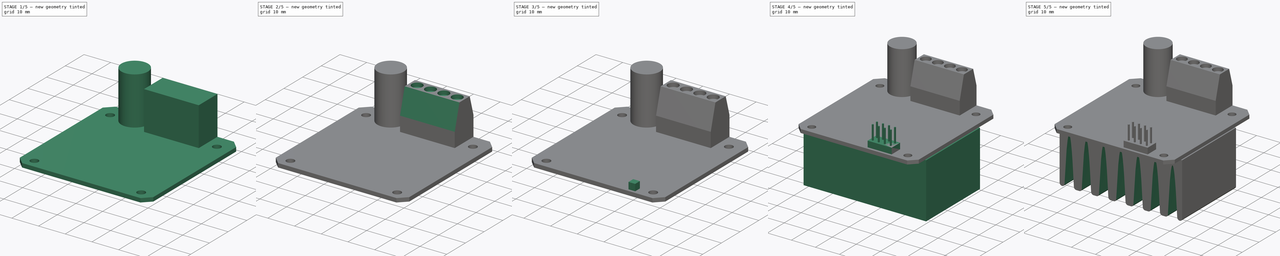
[diagram: build sequence overview — one tinted view per stage of 5, left to right]
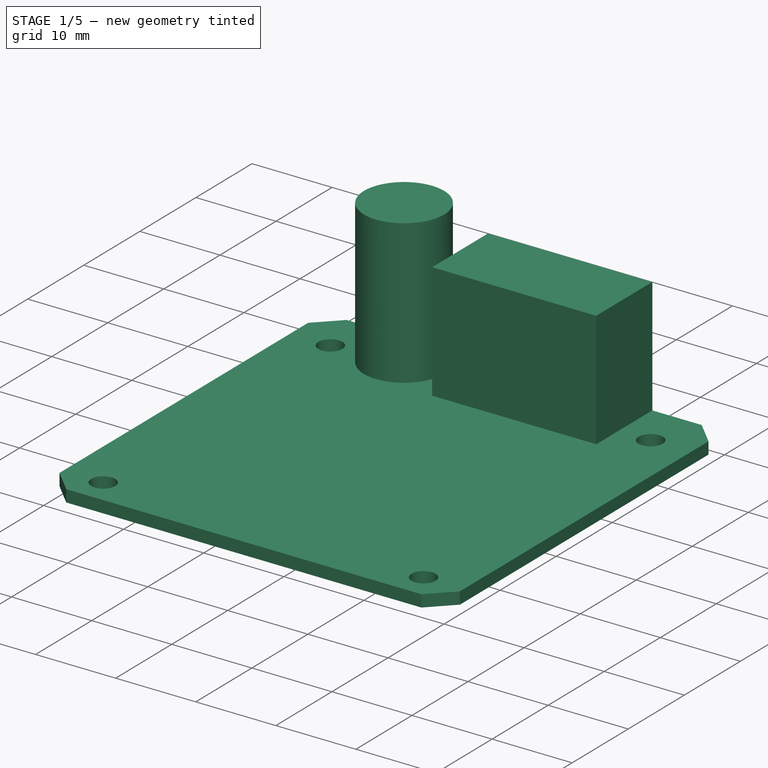
[diagram: stage 1 of 5 — iso view after this stage's code; geometry added in this stage tinted green]
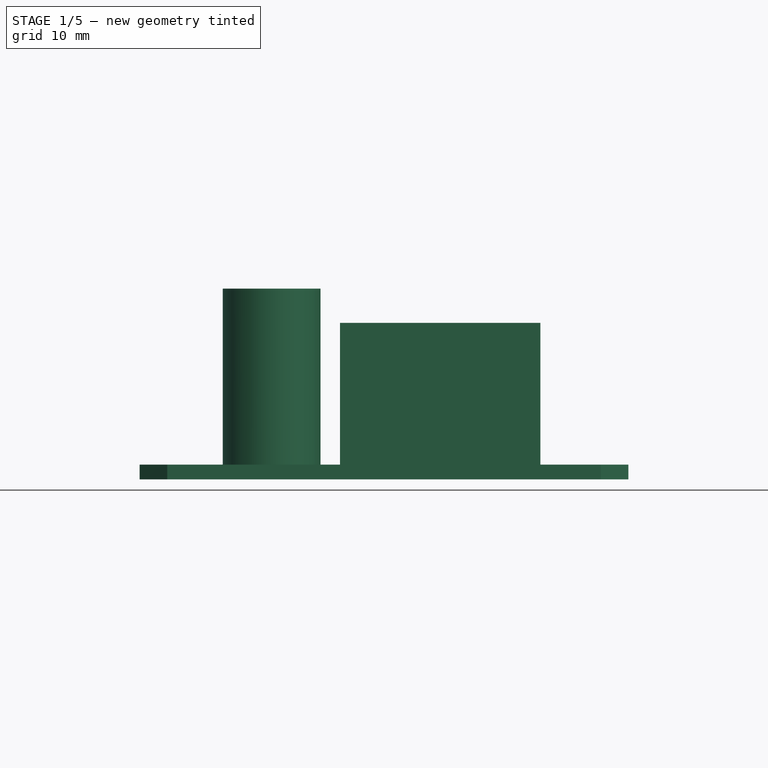
[diagram: stage 1 of 5 — front view after this stage's code; geometry added in this stage tinted green]
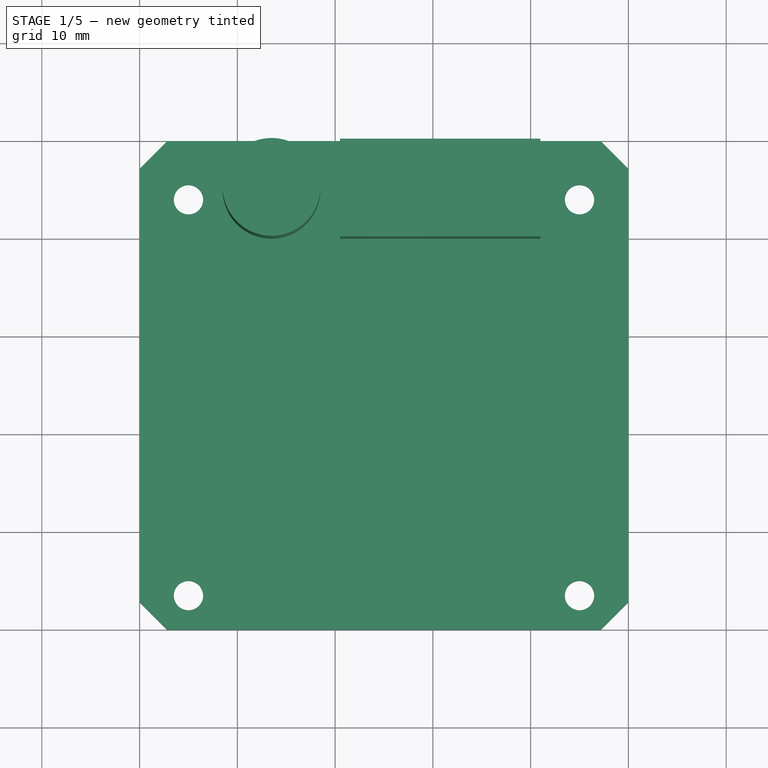
[diagram: stage 1 of 5 — top view after this stage's code; geometry added in this stage tinted green]
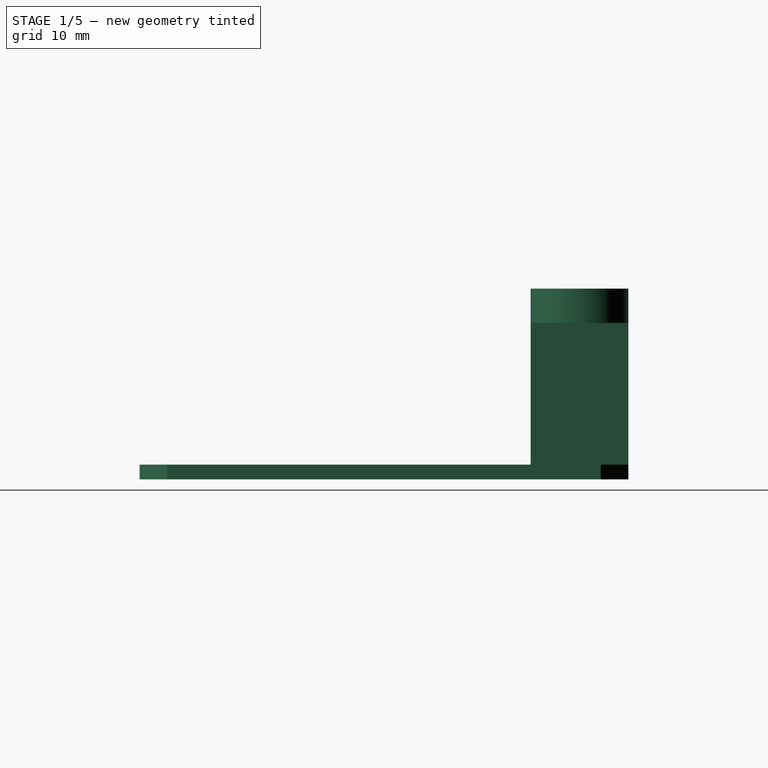
[diagram: stage 1 of 5 — right view after this stage's code; geometry added in this stage tinted green]
FCSTD DOCUMENT  (FreeCAD 1.0R39285 (Git))
Label: IBT_2-H-Bridge-MotorDriver
License: All rights reserved
LicenseURL: https://en.wikipedia.org/wiki/All_rights_reserved
objects: Sketcher::SketchObject×9, PartDesign::Pad×6, PartDesign::Chamfer×3, PartDesign::Pocket×3, PartDesign::LinearPattern×3, PartDesign::MultiTransform×1, PartDesign::Fillet×1, PartDesign::Body×1
note: 66 computed .brp shape members not serialized (recipe doc carries the construction recipe); baked Part::Feature solids carry a one-line shape summary decoded from their .brp

FEATURE [Sketcher::SketchObject] Sketch
  ArcFitTolerance = 1e-06
  AttachmentSupport = -> [XY_Plane]
  FullyConstrained = true
  MakeInternals = false
  MapMode = 5
  sketch-geometry (24):
    g0: LineSegment StartX=0 StartY=47.1716 StartZ=0 EndX=0 EndY=2.82843 EndZ=0
    g1: LineSegment StartX=2.82843 StartY=0 StartZ=0 EndX=47.1716 EndY=0 EndZ=0
    g2: LineSegment StartX=50 StartY=2.82843 StartZ=0 EndX=50 EndY=47.1716 EndZ=0
    g3: LineSegment StartX=47.1716 StartY=50 StartZ=0 EndX=2.82843 EndY=50 EndZ=0
    g4: LineSegment StartX=0 StartY=47.1716 StartZ=0 EndX=2.82843 EndY=50 EndZ=0
    g5: LineSegment StartX=47.1716 StartY=50 StartZ=0 EndX=50 EndY=47.1716 EndZ=0
    g6: LineSegment StartX=50 StartY=2.82843 StartZ=0 EndX=47.1716 EndY=0 EndZ=0
    g7: LineSegment StartX=2.82843 StartY=0 StartZ=0 EndX=0 EndY=2.82843 EndZ=0
    g8: LineSegment [constr] StartX=2.82843 StartY=50 StartZ=0 EndX=0 EndY=50 EndZ=0
    g9: LineSegment [constr] StartX=0 StartY=47.1716 StartZ=0 EndX=0 EndY=50 EndZ=0
    g10: LineSegment [constr] StartX=47.1716 StartY=50 StartZ=0 EndX=50 EndY=50 EndZ=0
    g11: LineSegment [constr] StartX=50 StartY=50 StartZ=0 EndX=50 EndY=47.1716 EndZ=0
    g12: LineSegment [constr] StartX=50 StartY=2.82843 StartZ=0 EndX=50 EndY=0 EndZ=0
    g13: LineSegment [constr] StartX=47.1716 StartY=0 StartZ=0 EndX=50 EndY=0 EndZ=0
    g14: LineSegment [constr] StartX=0 StartY=2.82843 StartZ=0 EndX=0 EndY=0 EndZ=0
    g15: LineSegment [constr] StartX=0 StartY=0 StartZ=0 EndX=2.82843 EndY=0 EndZ=0
    g16: Circle CenterX=5 CenterY=3.5 CenterZ=0 NormalX=0 NormalY=0 NormalZ=1 AngleXU=0 Radius=1.5
    g17: Circle CenterX=5 CenterY=44 CenterZ=0 NormalX=0 NormalY=0 NormalZ=1 AngleXU=0 Radius=1.5
    g18: Circle CenterX=45 CenterY=44 CenterZ=0 NormalX=0 NormalY=0 NormalZ=1 AngleXU=0 Radius=1.5
    g19: Circle CenterX=45 CenterY=3.5 CenterZ=0 NormalX=0 NormalY=0 NormalZ=1 AngleXU=0 Radius=1.5
    g20: LineSegment [constr] StartX=3.5 StartY=3.5 StartZ=0 EndX=0 EndY=3.5 EndZ=0
    g21: LineSegment [constr] StartX=46.5 StartY=3.5 StartZ=0 EndX=50 EndY=3.5 EndZ=0
    g22: LineSegment [constr] StartX=5 StartY=2 StartZ=0 EndX=5 EndY=0 EndZ=0
    g23: LineSegment [constr] StartX=5 StartY=45.5 StartZ=0 EndX=5 EndY=50 EndZ=0
  constraints (71):
    c: Vertical(g0)
    c: Vertical(g2)
    c: Horizontal(g1)
    c: Horizontal(g3)
    c: Coincident(g0,g7)
    c: Coincident(g1,g7)
    c: Coincident(g2,g6)
    c: Coincident(g1,g6)
    c: Coincident(g3,g5)
    c: Coincident(g2,g5)
    c: Coincident(g3,g4)
    c: Coincident(g0,g4)
    c: Coincident(g8,g3)
    c: Horizontal(g8)
    c: Coincident(g9,g0)
    c: Coincident(g9,g8)
    c: Coincident(g10,g3)
    c: Horizontal(g10)
    c: Coincident(g11,g10)
    c: Coincident(g11,g2)
    c: Coincident(g12,g2)
    c: Vertical(g12)
    c: Coincident(g13,g1)
    c: Coincident(g13,g12)
    c: Coincident(g14,g0)
    c: Vertical(g14)
    c: Coincident(g15,g14)
    c: Coincident(g15,g1)
    c: Horizontal(g15)
    c: Vertical(g9)
    c: Vertical(g11)
    c: Horizontal(g13)
    c: Equal(g13,g12)
    c: Equal(g12,g11)
    c: Equal(g11,g10)
    c: Equal(g10,g8)
    c: Equal(g8,g9)
    c: Equal(g9,g15)
    c: Equal(g15,g14)
    c: DistanceX(g14,g12) = 50
    c: DistanceY(g14,g8) = 50
    c: Coincident(g14,g-1)
    c: Distance(g5) = 4
    c: Equal(g18,g17)
    c: Equal(g17,g16)
    c: Equal(g16,g19)
    c: Horizontal(g16,g19)
    c: Horizontal(g17,g18)
    c: Vertical(g18,g19)
    c: Vertical(g16,g17)
    c: Diameter(g16) = 3
    c: PointOnObject(g20,g16)
    c: PointOnObject(g20,g0)
    c: Horizontal(g20)
    c: PointOnObject(g21,g19)
    c: PointOnObject(g21,g2)
    c: Horizontal(g21)
    c: DistanceX(g21,g21) = 3.5
    c: Equal(g21,g20)
    c: Horizontal(g20,g16)
    c: Horizontal(g16,g21)
    c: PointOnObject(g22,g16)
    c: PointOnObject(g22,g1)
    c: Vertical(g22)
    c: Vertical(g22,g16)
    c: DistanceY(g22,g22) = 2
    c: PointOnObject(g23,g17)
    c: PointOnObject(g23,g3)
    c: Vertical(g23)
    c: Vertical(g23,g17)
    c: DistanceY(g23,g23) = 4.5
FEATURE [PartDesign::Pad] Pad
  Direction = (0,0,1)
  Length = 1.5
  Length2 = 10
  Profile = -> Sketch
  ReferenceAxis = -> Sketch [N_Axis]
  Refine = true
  Reversed = true
  Suppressed = false
  Type = 0
FEATURE [Sketcher::SketchObject] Sketch001
  ArcFitTolerance = 1e-06
  AttachmentSupport = -> [Pad]
  ExternalGeometry = -> [Pad]
  FullyConstrained = true
  MakeInternals = false
  MapMode = 5
  sketch-geometry (3):
    g0: Circle CenterX=13.5 CenterY=45 CenterZ=0 NormalX=0 NormalY=0 NormalZ=1 AngleXU=0 Radius=5
    g1: GeomPoint [constr] X=13.5 Y=50 Z=0
    g2: LineSegment [constr] StartX=8.5 StartY=45 StartZ=0 EndX=0 EndY=45 EndZ=0
  constraints (9):
    c: Diameter(g0) = 10
    c: PointOnObject(g1,g0)
    c: Vertical(g1,g0)
    c: PointOnObject(g1,g-3)
    c: PointOnObject(g2,g0)
    c: PointOnObject(g2,g-2)
    c: Horizontal(g2)
    c: Horizontal(g2,g0)
    c: DistanceX(g2,g2) = 8.5
FEATURE [PartDesign::Pad] Pad001
  BaseFeature = -> Pad
  Direction = (0,0,1)
  Length = 18
  Length2 = 10
  Profile = -> Sketch001
  ReferenceAxis = -> Sketch001 [N_Axis]
  Refine = true
  Suppressed = false
  Type = 0
FEATURE [Sketcher::SketchObject] Sketch002
  ArcFitTolerance = 1e-06
  AttachmentSupport = -> [Pad001]
  ExternalGeometry = -> [Pad001]
  FullyConstrained = true
  MakeInternals = false
  MapMode = 5
  sketch-geometry (4):
    g0: LineSegment StartX=20.5 StartY=50 StartZ=0 EndX=20.5 EndY=40 EndZ=0
    g1: LineSegment StartX=20.5 StartY=40 StartZ=0 EndX=41 EndY=40 EndZ=0
    g2: LineSegment StartX=41 StartY=40 StartZ=0 EndX=41 EndY=50 EndZ=0
    g3: LineSegment StartX=41 StartY=50 StartZ=0 EndX=20.5 EndY=50 EndZ=0
  constraints (12):
    c: Coincident(g0,g1)
    c: Coincident(g1,g2)
    c: Coincident(g2,g3)
    c: Coincident(g3,g0)
    c: Vertical(g0)
    c: Vertical(g2)
    c: Horizontal(g1)
    c: Horizontal(g3)
    c: Distance(g0,g2) = 20.5
    c: Distance(g1,g3) = 10
    c: PointOnObject(g0,g-3)
    c: DistanceX(g1,g-4) = 9
FEATURE [PartDesign::Pad] Pad002
  BaseFeature = -> Pad001
  Direction = (0,0,1)
  Length = 14.5
  Length2 = 10
  Profile = -> Sketch002
  ReferenceAxis = -> Sketch002 [N_Axis]
  Refine = true
  Suppressed = false
  Type = 0
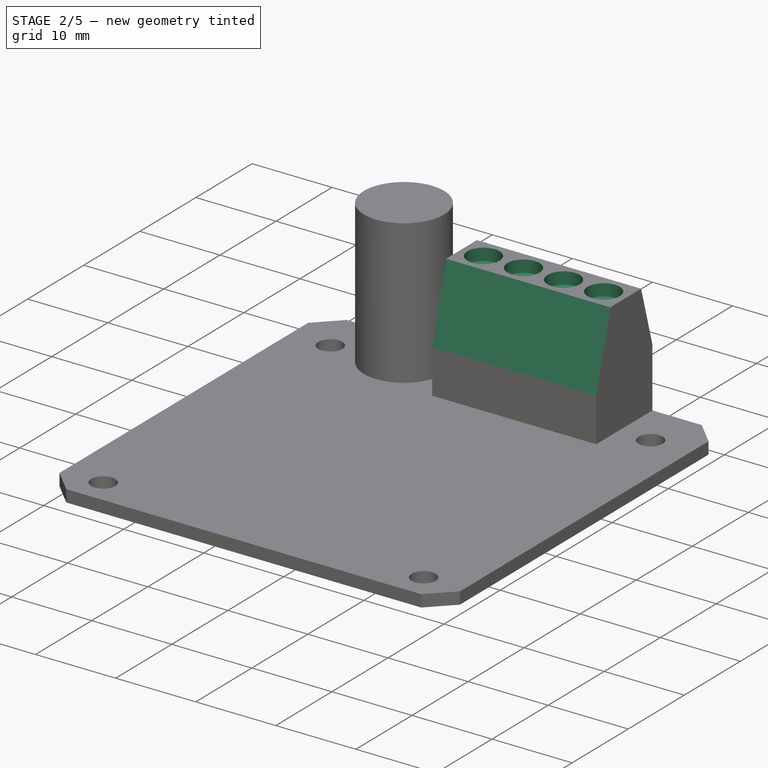
[diagram: stage 2 of 5 — iso view after this stage's code; geometry added in this stage tinted green]
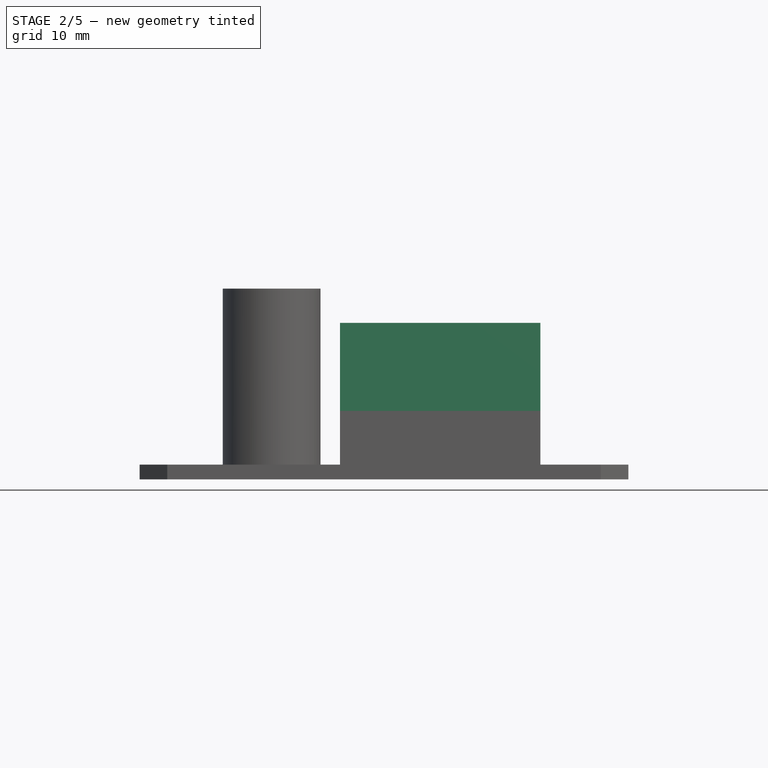
[diagram: stage 2 of 5 — front view after this stage's code; geometry added in this stage tinted green]
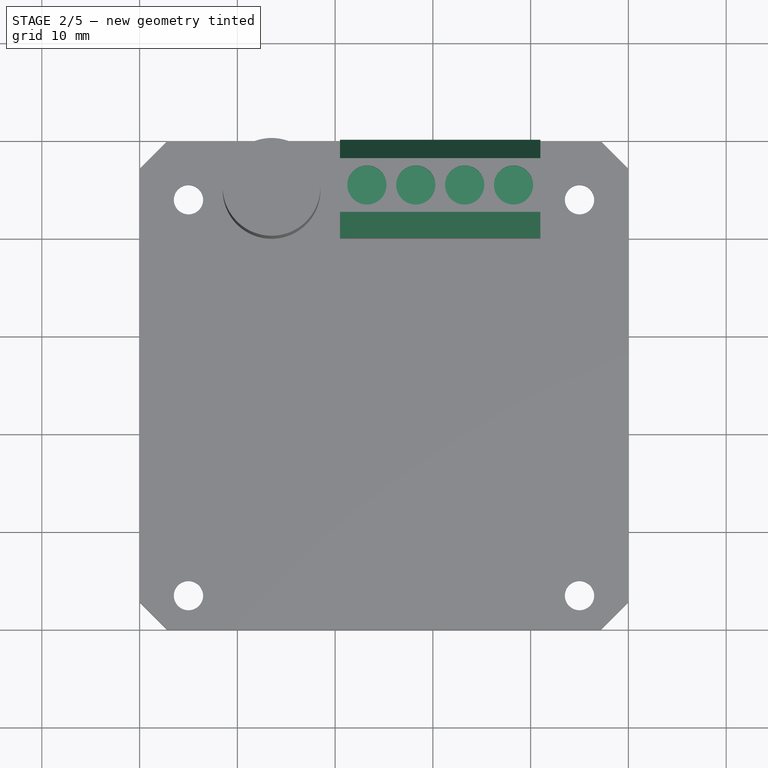
[diagram: stage 2 of 5 — top view after this stage's code; geometry added in this stage tinted green]
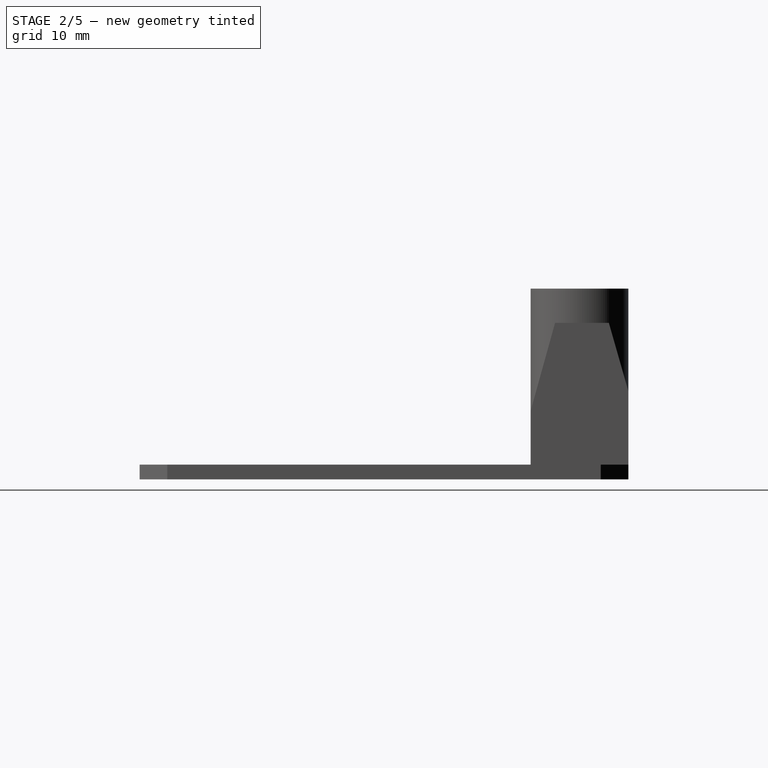
[diagram: stage 2 of 5 — right view after this stage's code; geometry added in this stage tinted green]
FEATURE [PartDesign::Chamfer] Chamfer
  Angle = 45
  Base = -> Pad002 [Edge44]
  BaseFeature = -> Pad002
  ChamferType = 1
  FlipDirection = false
  Refine = true
  Size = 9
  Size2 = 2.5
  SupportTransform = false
  Suppressed = false
  UseAllEdges = false
FEATURE [PartDesign::Chamfer] Chamfer001
  Angle = 45
  Base = -> Chamfer [Edge28]
  BaseFeature = -> Chamfer
  ChamferType = 1
  FlipDirection = false
  Refine = true
  Size = 2
  Size2 = 7
  SupportTransform = false
  Suppressed = false
  UseAllEdges = false
FEATURE [Sketcher::SketchObject] Sketch003
  ArcFitTolerance = 1e-06
  AttachmentSupport = -> [Chamfer001]
  ExternalGeometry = -> [Chamfer001]
  FullyConstrained = true
  MakeInternals = false
  MapMode = 5
  Placement = pos=(0,0,14.5) rot=(0,0,1;0rad)
  sketch-geometry (10):
    g0: Circle CenterX=23.25 CenterY=45.25 CenterZ=0 NormalX=0 NormalY=0 NormalZ=1 AngleXU=0 Radius=2
    g1: Circle CenterX=28.25 CenterY=45.25 CenterZ=0 NormalX=0 NormalY=0 NormalZ=1 AngleXU=0 Radius=2
    g2: Circle CenterX=33.25 CenterY=45.25 CenterZ=0 NormalX=0 NormalY=0 NormalZ=1 AngleXU=0 Radius=2
    g3: Circle CenterX=38.25 CenterY=45.25 CenterZ=0 NormalX=0 NormalY=0 NormalZ=1 AngleXU=0 Radius=2
    g4: GeomPoint [constr] X=20.5 Y=45.25 Z=0
    g5: LineSegment [constr] StartX=38.25 StartY=45.25 StartZ=0 EndX=41 EndY=45.25 EndZ=0
    g6: LineSegment [constr] StartX=38.25 StartY=45.25 StartZ=0 EndX=33.25 EndY=45.25 EndZ=0
    g7: LineSegment [constr] StartX=33.25 StartY=45.25 StartZ=0 EndX=28.25 EndY=45.25 EndZ=0
    g8: LineSegment [constr] StartX=28.25 StartY=45.25 StartZ=0 EndX=23.25 EndY=45.25 EndZ=0
    g9: LineSegment [constr] StartX=23.25 StartY=45.25 StartZ=0 EndX=20.5 EndY=45.25 EndZ=0
  constraints (24):
    c: Equal(g2,g3)
    c: Equal(g3,g1)
    c: Equal(g1,g0)
    c: Horizontal(g0,g1)
    c: Horizontal(g1,g2)
    c: Horizontal(g2,g3)
    c: Diameter(g3) = 4
    c: Symmetric(g-3,g-4,g4)
    c: Horizontal(g4,g0)
    c: Coincident(g5,g3)
    c: Horizontal(g5)
    c: Coincident(g6,g3)
    c: Coincident(g6,g2)
    c: Coincident(g7,g2)
    c: Coincident(g7,g1)
    c: Coincident(g8,g1)
    c: Coincident(g8,g0)
    c: Coincident(g9,g0)
    c: Coincident(g9,g4)
    c: Equal(g9,g5)
    c: Vertical(g5,g-3)
    c: Equal(g6,g7)
    c: Equal(g7,g8)
    c: DistanceX(g6,g6) = 5
FEATURE [PartDesign::Pocket] Pocket
  BaseFeature = -> Chamfer001
  Direction = (0,0,-1)
  Length = 1.5
  Length2 = 5
  Profile = -> Sketch003
  ReferenceAxis = -> Sketch003 [N_Axis]
  Refine = true
  Suppressed = false
  Type = 0
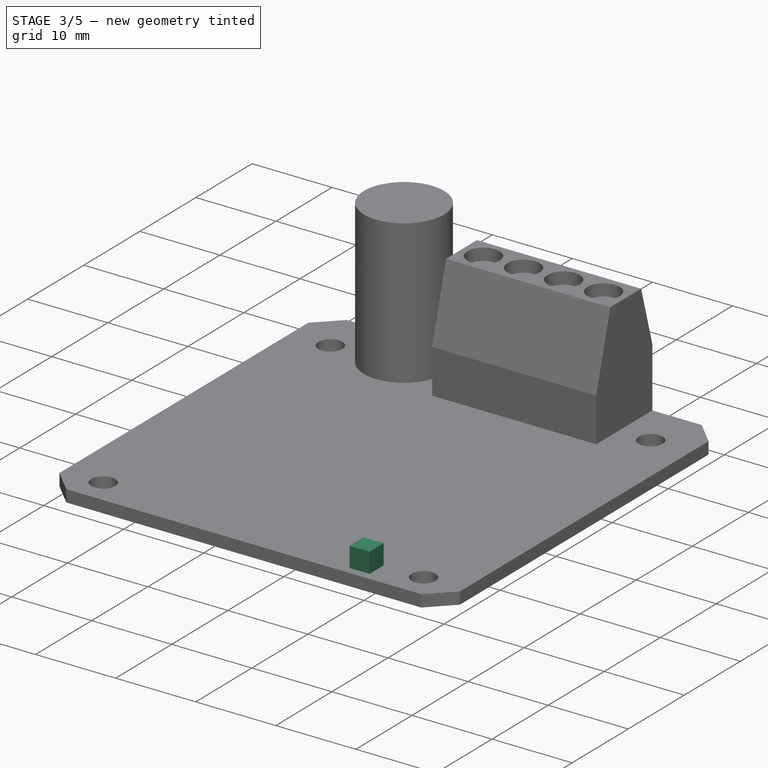
[diagram: stage 3 of 5 — iso view after this stage's code; geometry added in this stage tinted green]
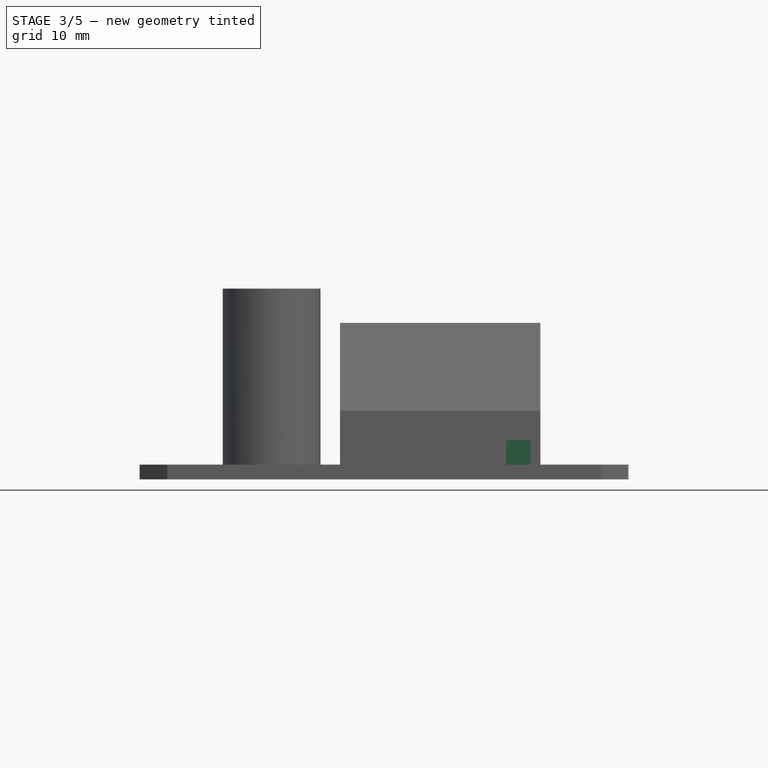
[diagram: stage 3 of 5 — front view after this stage's code; geometry added in this stage tinted green]
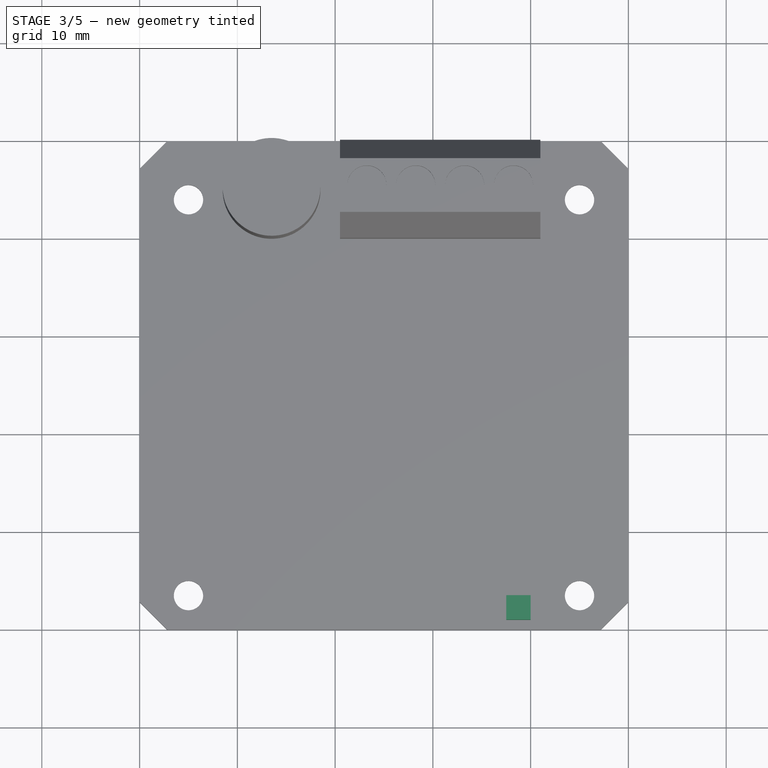
[diagram: stage 3 of 5 — top view after this stage's code; geometry added in this stage tinted green]
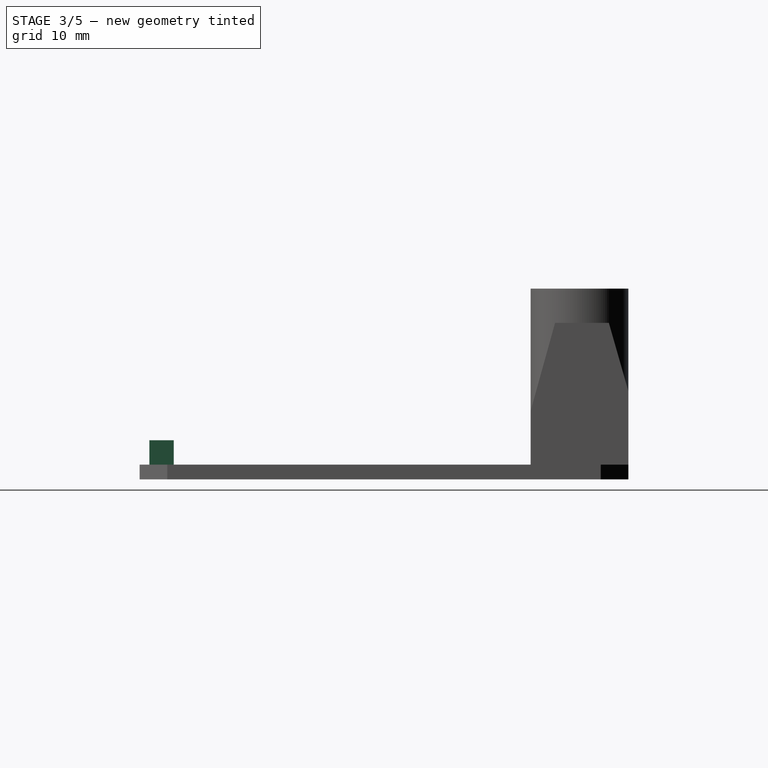
[diagram: stage 3 of 5 — right view after this stage's code; geometry added in this stage tinted green]
FEATURE [Sketcher::SketchObject] Sketch004
  ArcFitTolerance = 1e-06
  AttachmentSupport = -> [Pocket]
  ExternalGeometry = -> [Pocket]
  FullyConstrained = true
  MakeInternals = false
  MapMode = 5
  Placement = pos=(0,50,0) rot=(0,0.707107,0.707107;3.14159rad)
  sketch-geometry (21):
    g0: LineSegment StartX=-39.75 StartY=5.5 StartZ=0 EndX=-39.75 EndY=2.5 EndZ=0
    g1: LineSegment StartX=-39.75 StartY=2.5 StartZ=0 EndX=-36.75 EndY=2.5 EndZ=0
    g2: LineSegment StartX=-36.75 StartY=2.5 StartZ=0 EndX=-36.75 EndY=5.5 EndZ=0
    g3: LineSegment StartX=-36.75 StartY=5.5 StartZ=0 EndX=-39.75 EndY=5.5 EndZ=0
    g4: LineSegment StartX=-34.75 StartY=5.5 StartZ=0 EndX=-34.75 EndY=2.5 EndZ=0
    g5: LineSegment StartX=-34.75 StartY=2.5 StartZ=0 EndX=-31.75 EndY=2.5 EndZ=0
    g6: LineSegment StartX=-31.75 StartY=2.5 StartZ=0 EndX=-31.75 EndY=5.5 EndZ=0
    g7: LineSegment StartX=-31.75 StartY=5.5 StartZ=0 EndX=-34.75 EndY=5.5 EndZ=0
    g8: LineSegment StartX=-29.75 StartY=5.5 StartZ=0 EndX=-29.75 EndY=2.5 EndZ=0
    g9: LineSegment StartX=-29.75 StartY=2.5 StartZ=0 EndX=-26.75 EndY=2.5 EndZ=0
    g10: LineSegment StartX=-26.75 StartY=2.5 StartZ=0 EndX=-26.75 EndY=5.5 EndZ=0
    g11: LineSegment StartX=-26.75 StartY=5.5 StartZ=0 EndX=-29.75 EndY=5.5 EndZ=0
    g12: LineSegment StartX=-24.75 StartY=5.5 StartZ=0 EndX=-24.75 EndY=2.5 EndZ=0
    g13: LineSegment StartX=-24.75 StartY=2.5 StartZ=0 EndX=-21.75 EndY=2.5 EndZ=0
    g14: LineSegment StartX=-21.75 StartY=2.5 StartZ=0 EndX=-21.75 EndY=5.5 EndZ=0
    g15: LineSegment StartX=-21.75 StartY=5.5 StartZ=0 EndX=-24.75 EndY=5.5 EndZ=0
    g16: LineSegment [constr] StartX=-39.75 StartY=5.5 StartZ=0 EndX=-41 EndY=5.5 EndZ=0
    g17: LineSegment [constr] StartX=-36.75 StartY=5.5 StartZ=0 EndX=-34.75 EndY=5.5 EndZ=0
    g18: LineSegment [constr] StartX=-31.75 StartY=5.5 StartZ=0 EndX=-29.75 EndY=5.5 EndZ=0
    g19: LineSegment [constr] StartX=-26.75 StartY=5.5 StartZ=0 EndX=-24.75 EndY=5.5 EndZ=0
    g20: LineSegment [constr] StartX=-21.75 StartY=5.5 StartZ=0 EndX=-20.5 EndY=5.5 EndZ=0
  constraints (60):
    c: Coincident(g0,g1)
    c: Coincident(g1,g2)
    c: Coincident(g2,g3)
    c: Coincident(g3,g0)
    c: Vertical(g0)
    c: Vertical(g2)
    c: Horizontal(g1)
    c: Horizontal(g3)
    c: Coincident(g4,g5)
    c: Coincident(g5,g6)
    c: Coincident(g6,g7)
    c: Coincident(g7,g4)
    c: Vertical(g4)
    c: Vertical(g6)
    c: Horizontal(g5)
    c: Horizontal(g7)
    c: Coincident(g8,g9)
    c: Coincident(g9,g10)
    c: Coincident(g10,g11)
    c: Coincident(g11,g8)
    c: Vertical(g8)
    c: Vertical(g10)
    c: Horizontal(g9)
    c: Horizontal(g11)
    c: Coincident(g12,g13)
    c: Coincident(g13,g14)
    c: Coincident(g14,g15)
    c: Coincident(g15,g12)
    c: Vertical(g12)
    c: Vertical(g14)
    c: Horizontal(g13)
    c: Horizontal(g15)
    c: Equal(g3,g7)
    c: Equal(g7,g11)
    c: Equal(g11,g15)
    c: DistanceX(g11,g11) = 3
    c: Equal(g2,g6)
    c: Equal(g6,g10)
    c: Equal(g10,g14)
    c: DistanceY(g10,g10) = 3
    c: Horizontal(g1,g4)
    c: Horizontal(g4,g8)
    c: Horizontal(g8,g12)
    c: Coincident(g16,g0)
    c: Horizontal(g16)
    c: Coincident(g17,g2)
    c: Coincident(g17,g4)
    c: Coincident(g18,g6)
    c: Coincident(g18,g8)
    c: Coincident(g19,g10)
    c: Coincident(g19,g12)
    c: Coincident(g20,g14)
    c: Horizontal(g20)
    c: Vertical(g20,g-3)
    c: Vertical(g-3,g16)
    c: Equal(g20,g16)
    c: Equal(g17,g18)
    c: Equal(g18,g19)
    c: DistanceY(g-1,g13) = 2.5
    c: DistanceX(g0,g4) = 5
FEATURE [PartDesign::Pocket] Pocket001
  BaseFeature = -> Pocket
  Direction = (0,-1,2e-16)
  Length = 5
  Length2 = 5
  Profile = -> Sketch004
  ReferenceAxis = -> Sketch004 [N_Axis]
  Refine = true
  Suppressed = false
  Type = 0
FEATURE [PartDesign::Chamfer] Chamfer002
  Angle = 45
  Base = -> Pocket001 [Edge40,Edge36,Edge32,Edge28]
  BaseFeature = -> Pocket001
  ChamferType = 0
  FlipDirection = false
  Refine = true
  Size = 1
  Size2 = 1
  SupportTransform = false
  Suppressed = false
  UseAllEdges = false
FEATURE [Sketcher::SketchObject] Sketch005
  ArcFitTolerance = 1e-06
  AttachmentSupport = -> [Chamfer002]
  ExternalGeometry = -> [Chamfer002]
  FullyConstrained = true
  MakeInternals = false
  MapMode = 5
  sketch-geometry (4):
    g0: LineSegment StartX=37.5 StartY=3.5 StartZ=0 EndX=37.5 EndY=1 EndZ=0
    g1: LineSegment StartX=37.5 StartY=1 StartZ=0 EndX=40 EndY=1 EndZ=0
    g2: LineSegment StartX=40 StartY=1 StartZ=0 EndX=40 EndY=3.5 EndZ=0
    g3: LineSegment StartX=40 StartY=3.5 StartZ=0 EndX=37.5 EndY=3.5 EndZ=0
  constraints (12):
    c: Coincident(g0,g1)
    c: Coincident(g1,g2)
    c: Coincident(g2,g3)
    c: Coincident(g3,g0)
    c: Vertical(g0)
    c: Vertical(g2)
    c: Horizontal(g1)
    c: Horizontal(g3)
    c: Distance(g0,g2) = 2.5
    c: Distance(g1,g3) = 2.5
    c: DistanceX(g1,g-3) = 10
    c: DistanceY(g-1,g1) = 1
FEATURE [PartDesign::Pad] Pad003
  BaseFeature = -> Chamfer002
  Direction = (0,0,1)
  Length = 2.5
  Length2 = 10
  Profile = -> Sketch005
  ReferenceAxis = -> Sketch005 [N_Axis]
  Refine = true
  Suppressed = false
  Type = 0
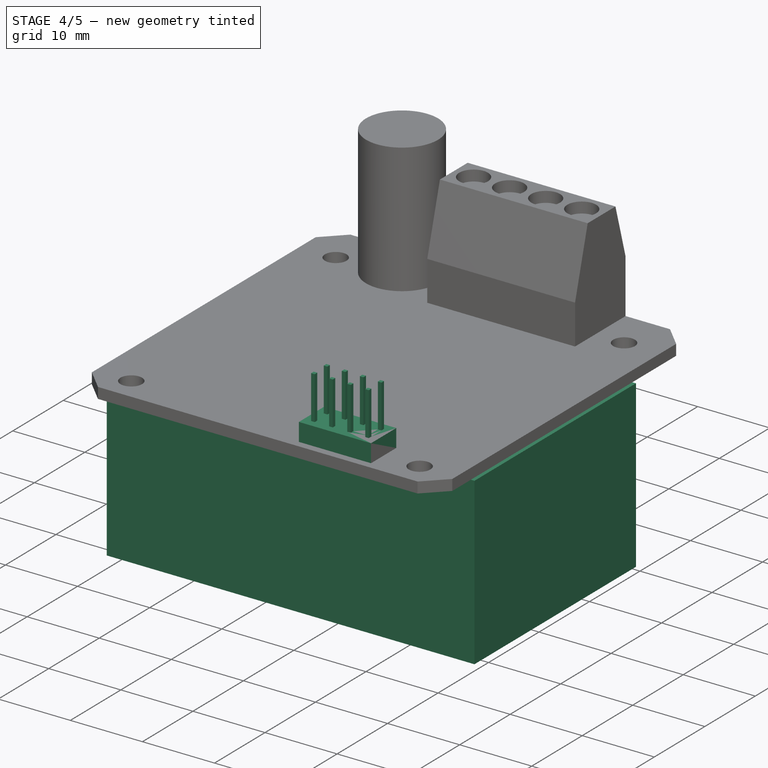
[diagram: stage 4 of 5 — iso view after this stage's code; geometry added in this stage tinted green]
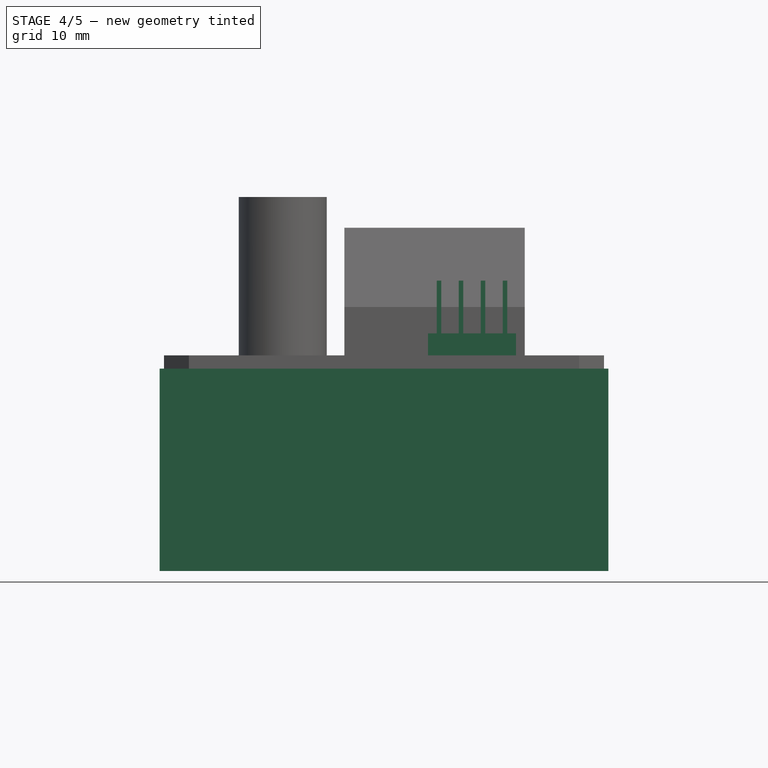
[diagram: stage 4 of 5 — front view after this stage's code; geometry added in this stage tinted green]
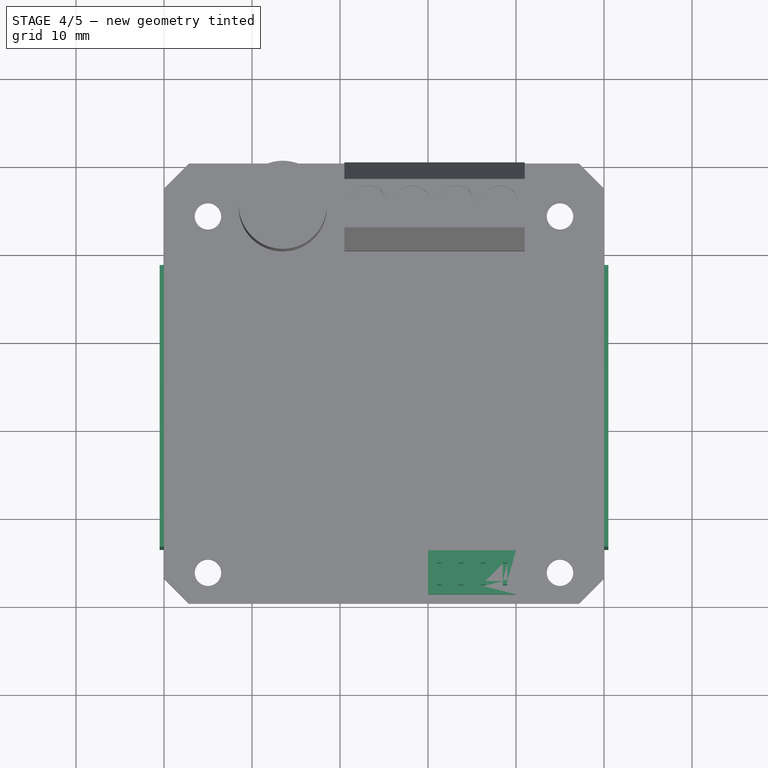
[diagram: stage 4 of 5 — top view after this stage's code; geometry added in this stage tinted green]
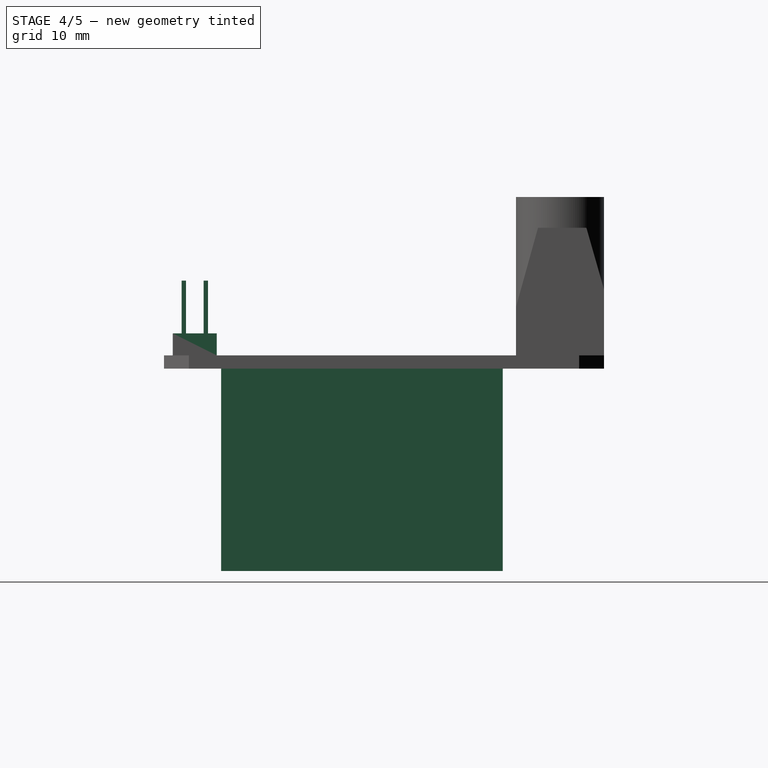
[diagram: stage 4 of 5 — right view after this stage's code; geometry added in this stage tinted green]
FEATURE [Sketcher::SketchObject] Sketch006
  ArcFitTolerance = 1e-06
  AttachmentSupport = -> [Pad003]
  ExternalGeometry = -> [Pad003]
  FullyConstrained = true
  MakeInternals = false
  MapMode = 5
  Placement = pos=(0,0,2.5) rot=(0,0,1;0rad)
  sketch-geometry (5):
    g0: LineSegment StartX=38.5 StartY=2.5 StartZ=0 EndX=38.5 EndY=2 EndZ=0
    g1: LineSegment StartX=38.5 StartY=2 StartZ=0 EndX=39 EndY=2 EndZ=0
    g2: LineSegment StartX=39 StartY=2 StartZ=0 EndX=39 EndY=2.5 EndZ=0
    g3: LineSegment StartX=39 StartY=2.5 StartZ=0 EndX=38.5 EndY=2.5 EndZ=0
    g4: GeomPoint [constr] X=38.75 Y=2.25 Z=0
  constraints (12):
    c: Coincident(g0,g1)
    c: Coincident(g1,g2)
    c: Coincident(g2,g3)
    c: Coincident(g3,g0)
    c: Vertical(g0)
    c: Vertical(g2)
    c: Horizontal(g1)
    c: Horizontal(g3)
    c: Equal(g0,g3)
    c: Symmetric(g0,g1,g4)
    c: Symmetric(g-3,g-4,g4)
    c: DistanceY(g2,g2) = 0.5
FEATURE [PartDesign::Pad] Pad004
  BaseFeature = -> Pad003
  Direction = (0,0,1)
  Length = 6
  Length2 = 10
  Profile = -> Sketch006
  ReferenceAxis = -> Sketch006 [N_Axis]
  Refine = true
  Suppressed = false
  Type = 0
FEATURE [PartDesign::LinearPattern] LinearPattern
  Direction = -> Sketch006 [H_Axis]
  Length = 7.5
  Mode = 0
  Occurrences = 4
  Offset = 2.5
  Refine = true
  Reversed = true
  Suppressed = false
  TransformMode = 0
FEATURE [PartDesign::LinearPattern] LinearPattern001
  Direction = -> Sketch006 [V_Axis]
  Length = 2.5
  Mode = 0
  Occurrences = 2
  Offset = 2.5
  Refine = true
  Suppressed = false
  TransformMode = 0
FEATURE [PartDesign::MultiTransform] MultiTransform
  BaseFeature = -> Pad004
  Originals = -> [Pad004,Pad003]
  Refine = true
  Suppressed = false
  TransformMode = 0
  Transformations = -> [LinearPattern,LinearPattern001]
FEATURE [Sketcher::SketchObject] Sketch007
  ArcFitTolerance = 1e-06
  AttachmentSupport = -> [MultiTransform]
  ExternalGeometry = -> [MultiTransform]
  FullyConstrained = true
  MakeInternals = false
  MapMode = 5
  Placement = pos=(0,0,-1.5) rot=(1,0,0;3.14159rad)
  sketch-geometry (9):
    g0: LineSegment StartX=-0.5 StartY=-6.5 StartZ=0 EndX=-0.5 EndY=-38.5 EndZ=0
    g1: LineSegment StartX=-0.5 StartY=-38.5 StartZ=0 EndX=50.5 EndY=-38.5 EndZ=0
    g2: LineSegment StartX=50.5 StartY=-38.5 StartZ=0 EndX=50.5 EndY=-6.5 EndZ=0
    g3: LineSegment StartX=50.5 StartY=-6.5 StartZ=0 EndX=-0.5 EndY=-6.5 EndZ=0
    g4: GeomPoint [constr] X=1.41421 Y=-1.41421 Z=0
    g5: GeomPoint [constr] X=48.5858 Y=-48.5858 Z=0
    g6: GeomPoint X=25 Y=-6.5 Z=0
    g7: GeomPoint X=50 Y=-6.5 Z=0
    g8: GeomPoint X=0 Y=-6.5 Z=0
  constraints (18):
    c: Coincident(g0,g1)
    c: Coincident(g1,g2)
    c: Coincident(g2,g3)
    c: Coincident(g3,g0)
    c: Vertical(g0)
    c: Vertical(g2)
    c: Horizontal(g1)
    c: Horizontal(g3)
    c: Distance(g0,g2) = 51
    c: Distance(g1,g3) = 32
    c: Symmetric(g-4,g-4,g4)
    c: Symmetric(g-3,g-3,g5)
    c: DistanceY(g2,g-1) = 6.5
    c: Symmetric(g3,g3,g6)
    c: PointOnObject(g7,g-5)
    c: Horizontal(g7,g6)
    c: PointOnObject(g8,g-2)
    c: Symmetric(g8,g7,g6)
FEATURE [PartDesign::Pad] Pad005
  BaseFeature = -> MultiTransform
  Direction = (0,0,-1)
  Length = 23
  Length2 = 10
  Profile = -> Sketch007
  ReferenceAxis = -> Sketch007 [N_Axis]
  Refine = true
  Suppressed = false
  Type = 0
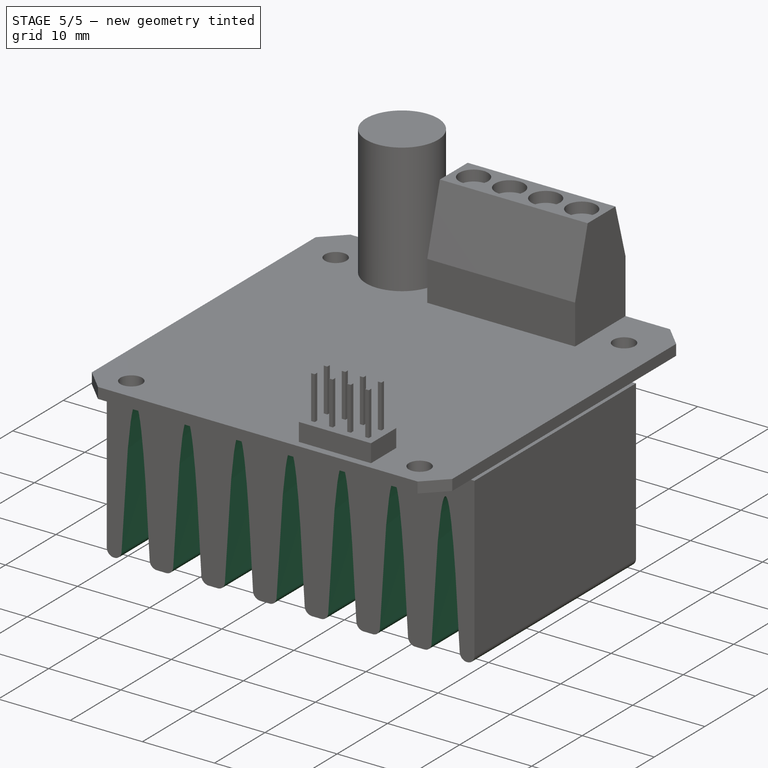
[diagram: stage 5 of 5 — iso view after this stage's code; geometry added in this stage tinted green]
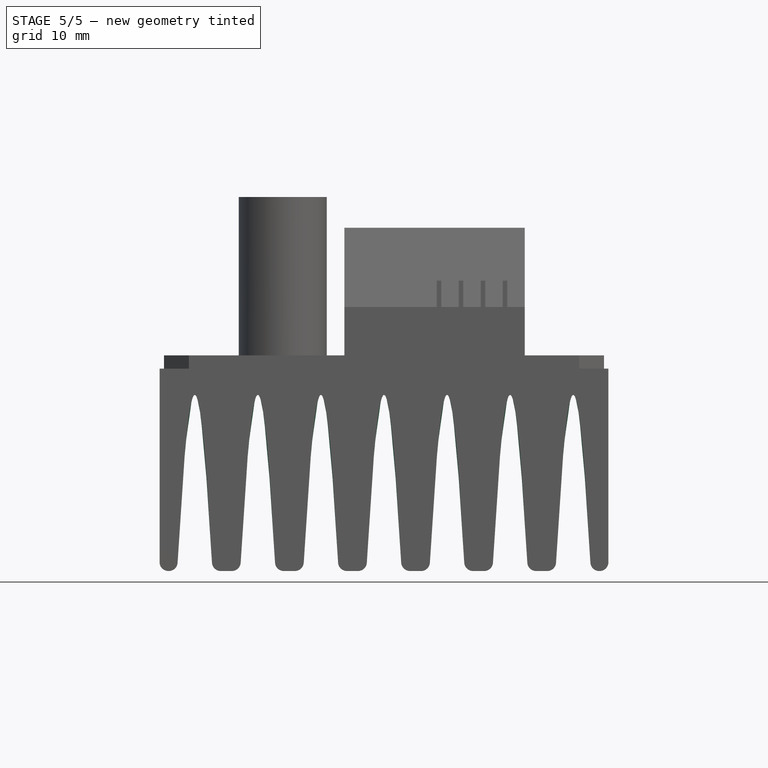
[diagram: stage 5 of 5 — front view after this stage's code; geometry added in this stage tinted green]
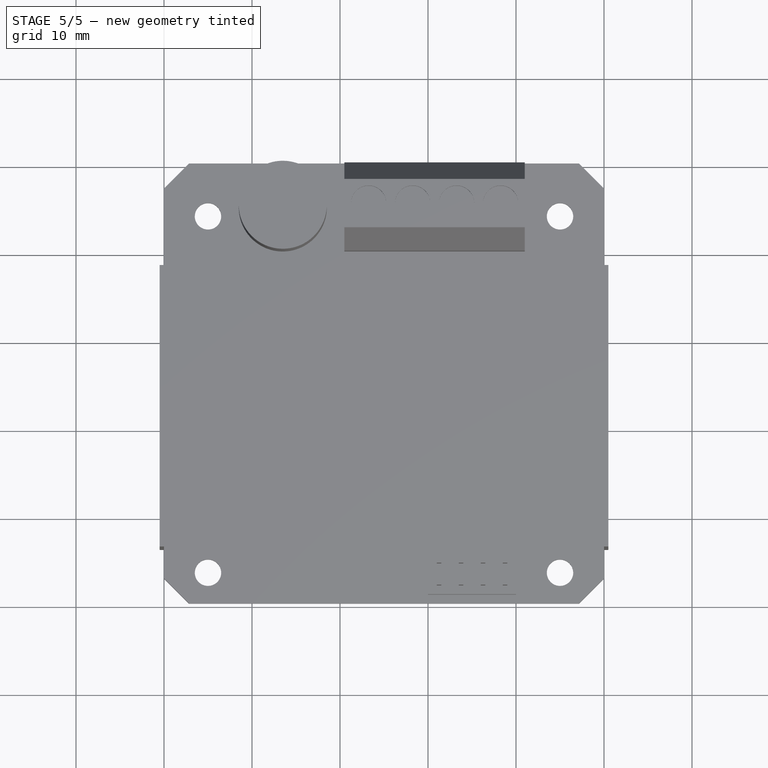
[diagram: stage 5 of 5 — top view after this stage's code; geometry added in this stage tinted green]
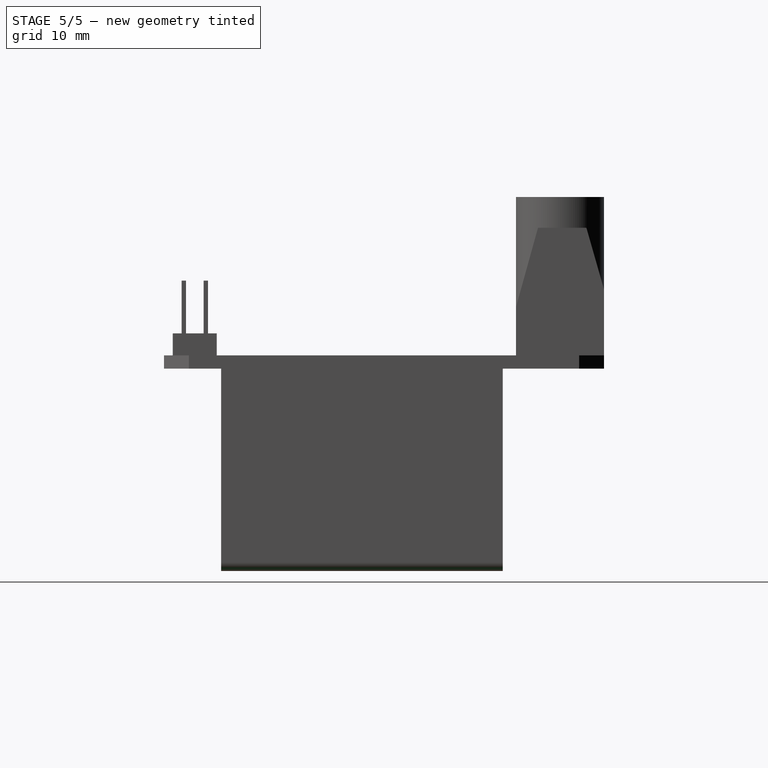
[diagram: stage 5 of 5 — right view after this stage's code; geometry added in this stage tinted green]
FEATURE [Sketcher::SketchObject] Sketch008
  ArcFitTolerance = 1e-06
  AttachmentSupport = -> [Pad005]
  ExternalGeometry = -> [Pad005]
  FullyConstrained = true
  MakeInternals = false
  MapMode = 5
  Placement = pos=(0,6.5,0) rot=(1,0,0;1.5708rad)
  sketch-geometry (11):
    g0: Circle [constr] CenterX=1.5 CenterY=-24.5 CenterZ=0 NormalX=0 NormalY=0 NormalZ=1 AngleXU=0 Radius=1
    g1: Circle [constr] CenterX=3.5 CenterY=15.5 CenterZ=0 NormalX=0 NormalY=0 NormalZ=1 AngleXU=0 Radius=1
    g2: Circle [constr] CenterX=5.5 CenterY=-24.5 CenterZ=0 NormalX=0 NormalY=0 NormalZ=1 AngleXU=0 Radius=1
    g3: BSplineCurve PolesCount=3 KnotsCount=2 Degree=2 IsPeriodic=0
    g4: GeomPoint [constr] X=1.5 Y=-24.5 Z=0
    g5: GeomPoint [constr] X=5.5 Y=-24.5 Z=0
    g6: LineSegment [constr] StartX=1.5 StartY=-24.5 StartZ=0 EndX=1.5 EndY=15.5 EndZ=0
    g7: LineSegment [constr] StartX=5.5 StartY=-24.5 StartZ=0 EndX=5.5 EndY=15.5 EndZ=0
    g8: LineSegment [constr] StartX=1.5 StartY=15.5 StartZ=0 EndX=3.5 EndY=15.5 EndZ=0
    g9: LineSegment [constr] StartX=3.5 StartY=15.5 StartZ=0 EndX=5.5 EndY=15.5 EndZ=0
    g10: LineSegment StartX=1.5 StartY=-24.5 StartZ=0 EndX=5.5 EndY=-24.5 EndZ=0
  constraints (25):
    c: Weight(g0) = 1
    c: Equal(g0,g1)
    c: Equal(g0,g2)
    c: InternalAlignment(g0,g3)
    c: InternalAlignment(g1,g3)
    c: InternalAlignment(g2,g3)
    c: InternalAlignment(g4,g3)
    c: InternalAlignment(g5,g3)
    c: DistanceX(g3,g3) = 4
    c: Coincident(g6,g3)
    c: Vertical(g6)
    c: Coincident(g7,g3)
    c: Coincident(g8,g6)
    c: Coincident(g8,g1)
    c: Horizontal(g8)
    c: Coincident(g9,g1)
    c: Coincident(g9,g7)
    c: Vertical(g7)
    c: Symmetric(g7,g6,g1)
    c: DistanceY(g7,g7) = 40
    c: Horizontal(g3,g3)
    c: PointOnObject(g3,g-3)
    c: Coincident(g10,g3)
    c: Coincident(g10,g3)
    c: DistanceX(g-3,g3) = 2
FEATURE [PartDesign::Pocket] Pocket002
  BaseFeature = -> Pad005
  Direction = (0,1,-2e-16)
  Length = 5
  Length2 = 5
  Profile = -> Sketch008
  ReferenceAxis = -> Sketch008 [N_Axis]
  Refine = true
  Suppressed = false
  Type = 1
FEATURE [PartDesign::LinearPattern] LinearPattern002
  BaseFeature = -> Pocket002
  Direction = -> Sketch008 [H_Axis]
  Length = 43
  Mode = 0
  Occurrences = 7
  Offset = 7.16667
  Originals = -> [Pocket002]
  Refine = true
  Suppressed = false
  TransformMode = 0
FEATURE [PartDesign::Fillet] Fillet
  Base = -> LinearPattern002 [Edge275,Edge301,Edge300,Edge299,Edge298,Edge297,Edge296,Edge295,Edge294,Edge293,Edge292,Edge291,Edge290,Edge289,Edge288,Edge274]
  BaseFeature = -> LinearPattern002
  Radius = 1
  Refine = true
  SupportTransform = false
  Suppressed = false
  UseAllEdges = false
FEATURE [PartDesign::Body] Body  label="Körper"
  AllowCompound = false
  Group = -> [Sketch,Pad,Sketch001,Pad001,Sketch002,Pad002,Chamfer,Chamfer001,Sketch003,Pocket,Sketch004,Pocket001,Chamfer002,Sketch005,Pad003,Sketch006,Pad004,MultiTransform,LinearPattern,LinearPattern001,Sketch007,Pad005,Sketch008,Pocket002,LinearPattern002,Fillet]
  Origin = -> Origin
  Tip = -> Fillet
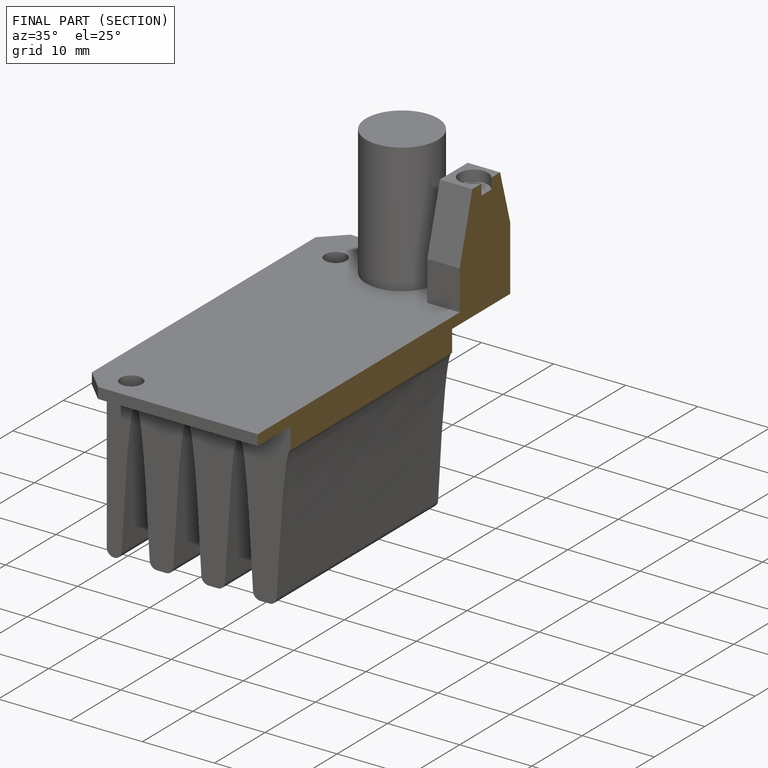
[diagram: finished part — half-section view (interior)]
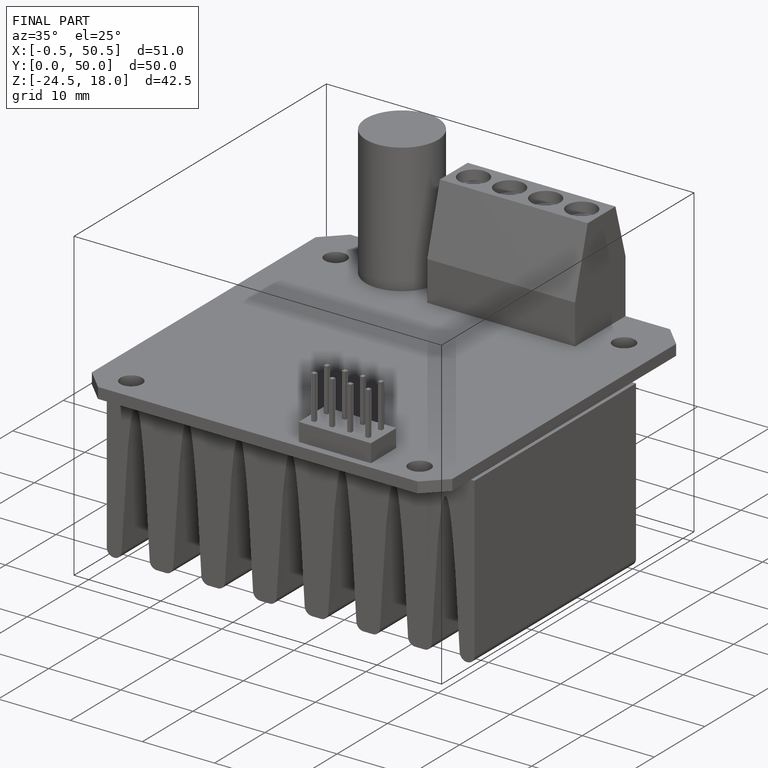
[diagram: finished part — iso view with bounding-box wireframe]
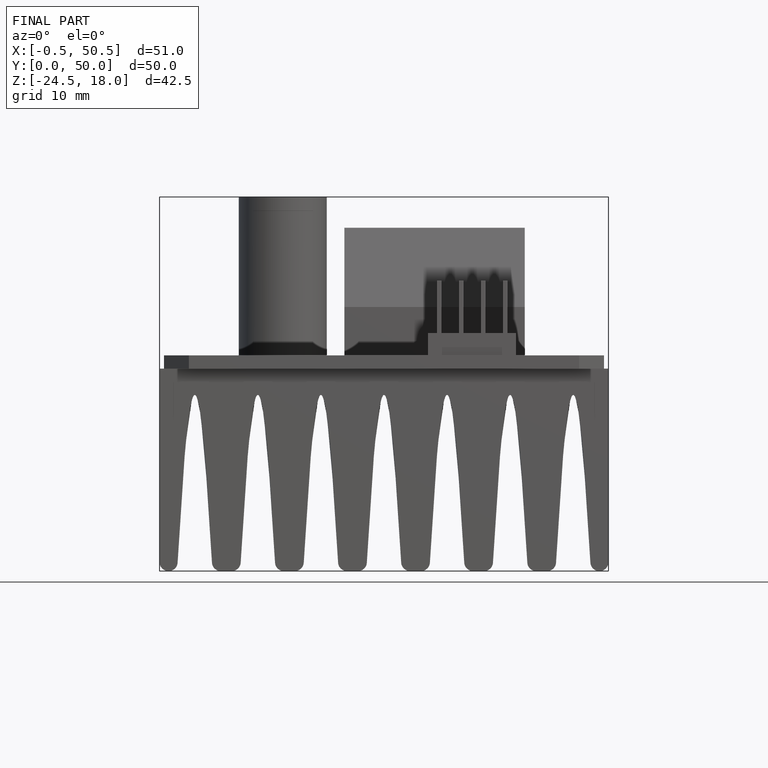
[diagram: finished part — front view with bounding-box wireframe]
